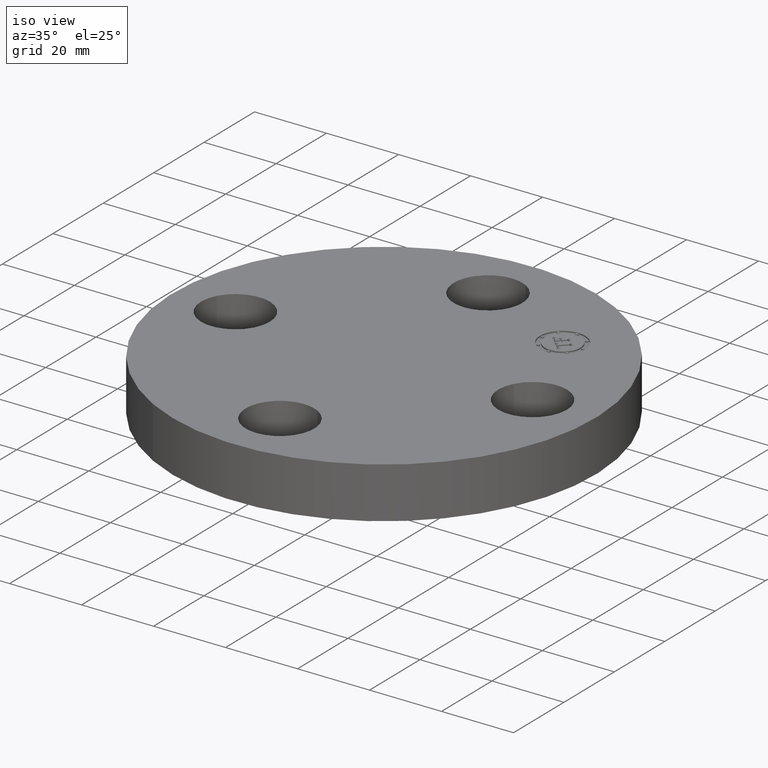
[diagram: clean part render]
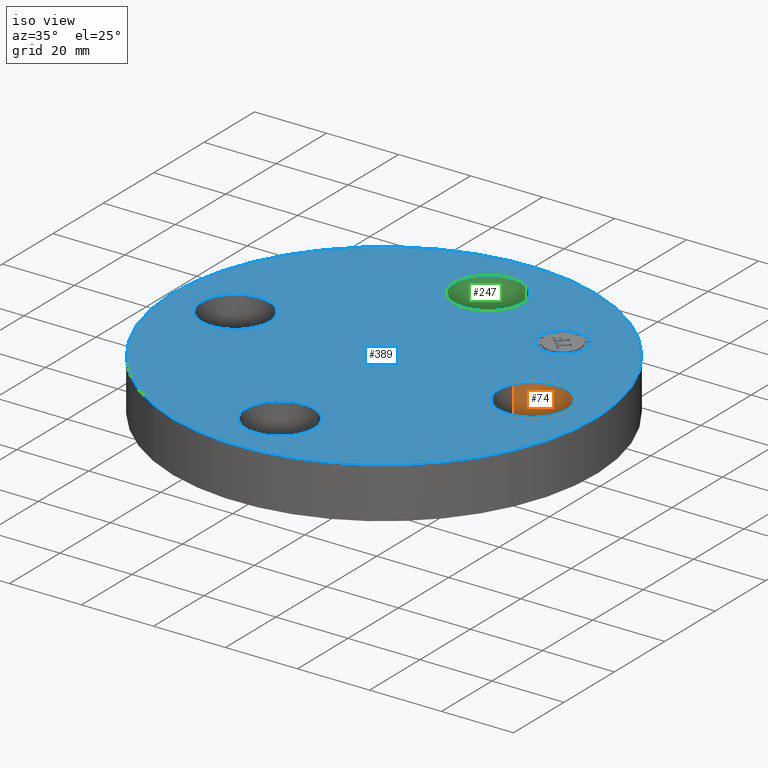
[diagram: same view with three faces highlighted in distinct colors, each labeled with its STEP entity id]
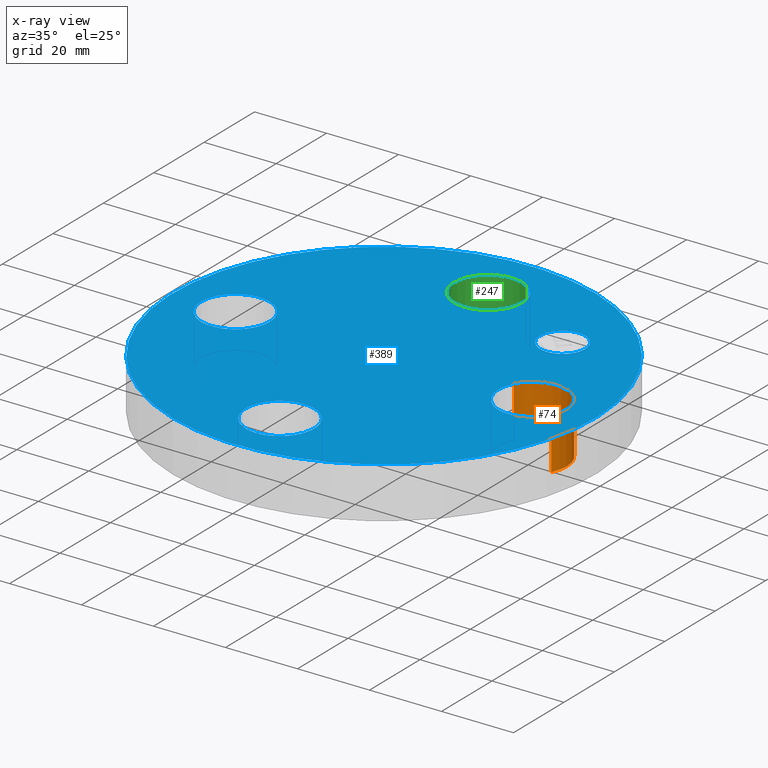
[diagram: x-ray of the same camera — body ghosted, the three highlighted faces saturated]
A machine part, iso view with three faces highlighted in distinct colors.
The next image is the same camera in x-ray (body ghosted, the three faces saturated) — at least one of them is partly hidden behind the body in this view.
Their STEP definitions:

[orange] entity #74 — the highlighted cylindrical surface (partial cylindrical patch) has radius 9.525 mm, axis along (0, -0, -1).
#38=AXIS2_PLACEMENT_3D('Cylinder Axis2P3D',#35,#36,#37) ;
#51=AXIS2_PLACEMENT_3D('Circle Axis2P3D',#49,#50,$) ;
#65=AXIS2_PLACEMENT_3D('Circle Axis2P3D',#63,#64,$) ;
#35=CARTESIAN_POINT('Axis2P3D Location',(1.62500000001,0.,0.556062992128)) ;
#40=CARTESIAN_POINT('Line Origine',(1.2959065393,0.179784576977,0.280000000001)) ;
#44=CARTESIAN_POINT('Vertex',(1.2959065393,0.179784576977,0.)) ;
#46=CARTESIAN_POINT('Vertex',(1.2959065393,0.179784576977,0.560000000002)) ;
#49=CARTESIAN_POINT('Axis2P3D Location',(1.62500000001,0.,0.)) ;
#53=CARTESIAN_POINT('Vertex',(1.95409346072,-0.179784576977,0.)) ;
#56=CARTESIAN_POINT('Line Origine',(1.95409346072,-0.179784576977,0.280000000001)) ;
#60=CARTESIAN_POINT('Vertex',(1.95409346072,-0.179784576977,0.560000000002)) ;
#63=CARTESIAN_POINT('Axis2P3D Location',(1.62500000001,0.,0.560000000002)) ;
#36=DIRECTION('Axis2P3D Direction',(0.,-0.,-0.0393700787402)) ;
#37=DIRECTION('Axis2P3D XDirection',(0.0345504945626,-0.0188750212049,0.)) ;
#41=DIRECTION('Vector Direction',(0.,0.,-0.0393700787402)) ;
#50=DIRECTION('Axis2P3D Direction',(0.,-0.,-0.0393700787402)) ;
#57=DIRECTION('Vector Direction',(0.,0.,-0.0393700787402)) ;
#64=DIRECTION('Axis2P3D Direction',(0.,-0.,-0.0393700787402)) ;
#42=VECTOR('Line Direction',#41,0.0393700787402) ;
#58=VECTOR('Line Direction',#57,0.0393700787402) ;
#69=ORIENTED_EDGE('',*,*,#48,.F.) ;
#70=ORIENTED_EDGE('',*,*,#55,.T.) ;
#71=ORIENTED_EDGE('',*,*,#62,.T.) ;
#72=ORIENTED_EDGE('',*,*,#67,.F.) ;
#74=ADVANCED_FACE('PartBody',(#73),#39,.F.) ;
#52=CIRCLE('generated circle',#51,0.375000000001) ;
#66=CIRCLE('generated circle',#65,0.375000000001) ;
#39=CYLINDRICAL_SURFACE('generated cylinder',#38,0.375000000001) ;
#48=EDGE_CURVE('',#45,#47,#43,.F.) ;
#55=EDGE_CURVE('',#45,#54,#52,.T.) ;
#62=EDGE_CURVE('',#54,#61,#59,.F.) ;
#67=EDGE_CURVE('',#47,#61,#66,.T.) ;
#68=EDGE_LOOP('',(#69,#70,#71,#72)) ;
#73=FACE_OUTER_BOUND('',#68,.T.) ;
#43=LINE('Line',#40,#42) ;
#59=LINE('Line',#56,#58) ;
#45=VERTEX_POINT('',#44) ;
#47=VERTEX_POINT('',#46) ;
#54=VERTEX_POINT('',#53) ;
#61=VERTEX_POINT('',#60) ;

[blue] entity #389 — the highlighted planar face has unit normal (0, 0, -1).
#65=AXIS2_PLACEMENT_3D('Circle Axis2P3D',#63,#64,$) ;
#82=AXIS2_PLACEMENT_3D('Circle Axis2P3D',#80,#81,$) ;
#115=AXIS2_PLACEMENT_3D('Circle Axis2P3D',#113,#114,$) ;
#139=AXIS2_PLACEMENT_3D('Circle Axis2P3D',#137,#138,$) ;
#238=AXIS2_PLACEMENT_3D('Circle Axis2P3D',#236,#237,$) ;
#250=AXIS2_PLACEMENT_3D('Circle Axis2P3D',#248,#249,$) ;
#281=AXIS2_PLACEMENT_3D('Circle Axis2P3D',#279,#280,$) ;
#293=AXIS2_PLACEMENT_3D('Circle Axis2P3D',#291,#292,$) ;
#324=AXIS2_PLACEMENT_3D('Circle Axis2P3D',#322,#323,$) ;
#336=AXIS2_PLACEMENT_3D('Circle Axis2P3D',#334,#335,$) ;
#349=AXIS2_PLACEMENT_3D('Plane Axis2P3D',#346,#347,#348) ;
#373=AXIS2_PLACEMENT_3D('Circle Axis2P3D',#371,#372,$) ;
#382=AXIS2_PLACEMENT_3D('Circle Axis2P3D',#380,#381,$) ;
#46=CARTESIAN_POINT('Vertex',(1.2959065393,0.179784576977,0.560000000002)) ;
#60=CARTESIAN_POINT('Vertex',(1.95409346072,-0.179784576977,0.560000000002)) ;
#63=CARTESIAN_POINT('Axis2P3D Location',(1.62500000001,0.,0.560000000002)) ;
#80=CARTESIAN_POINT('Axis2P3D Location',(1.62500000001,0.,0.560000000002)) ;
#110=CARTESIAN_POINT('Vertex',(1.10747299418,2.02721571797,0.560000000002)) ;
#113=CARTESIAN_POINT('Axis2P3D Location',(0.,0.,0.560000000002)) ;
#117=CARTESIAN_POINT('Vertex',(-1.10747299418,-2.02721571797,0.560000000002)) ;
#137=CARTESIAN_POINT('Axis2P3D Location',(0.,0.,0.560000000002)) ;
#226=CARTESIAN_POINT('Vertex',(-0.179784576977,1.2959065393,0.560000000002)) ;
#233=CARTESIAN_POINT('Vertex',(0.179784576977,1.95409346072,0.560000000002)) ;
#236=CARTESIAN_POINT('Axis2P3D Location',(-2.98507657293E-016,1.62500000001,0.560000000002)) ;
#248=CARTESIAN_POINT('Axis2P3D Location',(-2.98507657293E-016,1.62500000001,0.560000000002)) ;
#269=CARTESIAN_POINT('Vertex',(-1.2959065393,-0.179784576977,0.560000000002)) ;
#276=CARTESIAN_POINT('Vertex',(-1.95409346072,0.179784576977,0.560000000002)) ;
#279=CARTESIAN_POINT('Axis2P3D Location',(-1.62500000001,-1.99005104862E-016,0.560000000002)) ;
#291=CARTESIAN_POINT('Axis2P3D Location',(-1.62500000001,-1.99005104862E-016,0.560000000002)) ;
#312=CARTESIAN_POINT('Vertex',(0.179784576977,-1.2959065393,0.560000000002)) ;
#319=CARTESIAN_POINT('Vertex',(-0.179784576977,-1.95409346072,0.560000000002)) ;
#322=CARTESIAN_POINT('Axis2P3D Location',(-1.8023868212E-016,-1.62500000001,0.560000000002)) ;
#334=CARTESIAN_POINT('Axis2P3D Location',(-1.8023868212E-016,-1.62500000001,0.560000000002)) ;
#346=CARTESIAN_POINT('Axis2P3D Location',(0.,2.31000000001,0.560000000002)) ;
#371=CARTESIAN_POINT('Axis2P3D Location',(1.14904851943,1.14904851943,0.560000000002)) ;
#375=CARTESIAN_POINT('Vertex',(0.974039591088,1.32405744778,0.560000000002)) ;
#377=CARTESIAN_POINT('Vertex',(1.32405744778,0.974039591088,0.560000000002)) ;
#380=CARTESIAN_POINT('Axis2P3D Location',(1.14904851943,1.14904851943,0.560000000002)) ;
#64=DIRECTION('Axis2P3D Direction',(0.,-0.,-0.0393700787402)) ;
#81=DIRECTION('Axis2P3D Direction',(0.,-0.,-0.0393700787402)) ;
#114=DIRECTION('Axis2P3D Direction',(0.,0.,-0.0393700787402)) ;
#138=DIRECTION('Axis2P3D Direction',(0.,0.,-0.0393700787402)) ;
#237=DIRECTION('Axis2P3D Direction',(0.,0.,-0.0393700787402)) ;
#249=DIRECTION('Axis2P3D Direction',(0.,0.,-0.0393700787402)) ;
#280=DIRECTION('Axis2P3D Direction',(-0.,0.,-0.0393700787402)) ;
#292=DIRECTION('Axis2P3D Direction',(-0.,0.,-0.0393700787402)) ;
#323=DIRECTION('Axis2P3D Direction',(0.,-0.,-0.0393700787402)) ;
#335=DIRECTION('Axis2P3D Direction',(0.,-0.,-0.0393700787402)) ;
#347=DIRECTION('Axis2P3D Direction',(0.,0.,-0.0393700787402)) ;
#348=DIRECTION('Axis2P3D XDirection',(0.0393700787402,0.,0.)) ;
#372=DIRECTION('Axis2P3D Direction',(0.,0.,-0.0393700787402)) ;
#381=DIRECTION('Axis2P3D Direction',(0.,0.,-0.0393700787402)) ;
#352=ORIENTED_EDGE('',*,*,#119,.F.) ;
#353=ORIENTED_EDGE('',*,*,#141,.F.) ;
#356=ORIENTED_EDGE('',*,*,#67,.T.) ;
#357=ORIENTED_EDGE('',*,*,#84,.T.) ;
#360=ORIENTED_EDGE('',*,*,#338,.T.) ;
#361=ORIENTED_EDGE('',*,*,#326,.T.) ;
#364=ORIENTED_EDGE('',*,*,#295,.T.) ;
#365=ORIENTED_EDGE('',*,*,#283,.T.) ;
#368=ORIENTED_EDGE('',*,*,#252,.T.) ;
#369=ORIENTED_EDGE('',*,*,#240,.T.) ;
#386=ORIENTED_EDGE('',*,*,#379,.T.) ;
#387=ORIENTED_EDGE('',*,*,#384,.T.) ;
#358=FACE_BOUND('',#355,.T.) ;
#362=FACE_BOUND('',#359,.T.) ;
#366=FACE_BOUND('',#363,.T.) ;
#370=FACE_BOUND('',#367,.T.) ;
#388=FACE_BOUND('',#385,.T.) ;
#389=ADVANCED_FACE('PartBody',(#354,#358,#362,#366,#370,#388),#350,.F.) ;
#66=CIRCLE('generated circle',#65,0.375000000001) ;
#83=CIRCLE('generated circle',#82,0.375000000001) ;
#116=CIRCLE('generated circle',#115,2.31000000001) ;
#140=CIRCLE('generated circle',#139,2.31000000001) ;
#239=CIRCLE('generated circle',#238,0.375000000001) ;
#251=CIRCLE('generated circle',#250,0.375000000001) ;
#282=CIRCLE('generated circle',#281,0.375000000002) ;
#294=CIRCLE('generated circle',#293,0.375000000002) ;
#325=CIRCLE('generated circle',#324,0.375000000001) ;
#337=CIRCLE('generated circle',#336,0.375000000001) ;
#374=CIRCLE('generated circle',#373,0.247500000001) ;
#383=CIRCLE('generated circle',#382,0.247500000001) ;
#67=EDGE_CURVE('',#47,#61,#66,.T.) ;
#84=EDGE_CURVE('',#61,#47,#83,.T.) ;
#119=EDGE_CURVE('',#111,#118,#116,.T.) ;
#141=EDGE_CURVE('',#118,#111,#140,.T.) ;
#240=EDGE_CURVE('',#227,#234,#239,.T.) ;
#252=EDGE_CURVE('',#234,#227,#251,.T.) ;
#283=EDGE_CURVE('',#270,#277,#282,.T.) ;
#295=EDGE_CURVE('',#277,#270,#294,.T.) ;
#326=EDGE_CURVE('',#313,#320,#325,.T.) ;
#338=EDGE_CURVE('',#320,#313,#337,.T.) ;
#379=EDGE_CURVE('',#376,#378,#374,.T.) ;
#384=EDGE_CURVE('',#378,#376,#383,.T.) ;
#351=EDGE_LOOP('',(#352,#353)) ;
#355=EDGE_LOOP('',(#356,#357)) ;
#359=EDGE_LOOP('',(#360,#361)) ;
#363=EDGE_LOOP('',(#364,#365)) ;
#367=EDGE_LOOP('',(#368,#369)) ;
#385=EDGE_LOOP('',(#386,#387)) ;
#354=FACE_OUTER_BOUND('',#351,.T.) ;
#350=PLANE('',#349) ;
#47=VERTEX_POINT('',#46) ;
#61=VERTEX_POINT('',#60) ;
#111=VERTEX_POINT('',#110) ;
#118=VERTEX_POINT('',#117) ;
#227=VERTEX_POINT('',#226) ;
#234=VERTEX_POINT('',#233) ;
#270=VERTEX_POINT('',#269) ;
#277=VERTEX_POINT('',#276) ;
#313=VERTEX_POINT('',#312) ;
#320=VERTEX_POINT('',#319) ;
#376=VERTEX_POINT('',#375) ;
#378=VERTEX_POINT('',#377) ;

[green] entity #247 — the highlighted cylindrical surface (partial cylindrical patch) has radius 9.525 mm, axis along (0, 0, -1).
#200=AXIS2_PLACEMENT_3D('Circle Axis2P3D',#198,#199,$) ;
#220=AXIS2_PLACEMENT_3D('Cylinder Axis2P3D',#217,#218,#219) ;
#238=AXIS2_PLACEMENT_3D('Circle Axis2P3D',#236,#237,$) ;
#198=CARTESIAN_POINT('Axis2P3D Location',(-3.1470888887E-016,1.62500000001,0.)) ;
#202=CARTESIAN_POINT('Vertex',(-0.179784576977,1.2959065393,0.)) ;
#204=CARTESIAN_POINT('Vertex',(0.179784576977,1.95409346072,0.)) ;
#217=CARTESIAN_POINT('Axis2P3D Location',(-2.98507657293E-016,1.62500000001,0.556062992128)) ;
#222=CARTESIAN_POINT('Line Origine',(-0.179784576977,1.2959065393,0.280000000001)) ;
#226=CARTESIAN_POINT('Vertex',(-0.179784576977,1.2959065393,0.560000000002)) ;
#229=CARTESIAN_POINT('Line Origine',(0.179784576977,1.95409346072,0.280000000001)) ;
#233=CARTESIAN_POINT('Vertex',(0.179784576977,1.95409346072,0.560000000002)) ;
#236=CARTESIAN_POINT('Axis2P3D Location',(-2.98507657293E-016,1.62500000001,0.560000000002)) ;
#199=DIRECTION('Axis2P3D Direction',(0.,0.,-0.0393700787402)) ;
#218=DIRECTION('Axis2P3D Direction',(0.,0.,-0.0393700787402)) ;
#219=DIRECTION('Axis2P3D XDirection',(0.0188750212049,0.0345504945626,0.)) ;
#223=DIRECTION('Vector Direction',(0.,0.,-0.0393700787402)) ;
#230=DIRECTION('Vector Direction',(0.,0.,-0.0393700787402)) ;
#237=DIRECTION('Axis2P3D Direction',(0.,0.,-0.0393700787402)) ;
#224=VECTOR('Line Direction',#223,0.0393700787402) ;
#231=VECTOR('Line Direction',#230,0.0393700787402) ;
#242=ORIENTED_EDGE('',*,*,#228,.F.) ;
#243=ORIENTED_EDGE('',*,*,#206,.T.) ;
#244=ORIENTED_EDGE('',*,*,#235,.T.) ;
#245=ORIENTED_EDGE('',*,*,#240,.F.) ;
#247=ADVANCED_FACE('PartBody',(#246),#221,.F.) ;
#201=CIRCLE('generated circle',#200,0.375000000001) ;
#239=CIRCLE('generated circle',#238,0.375000000001) ;
#221=CYLINDRICAL_SURFACE('generated cylinder',#220,0.375000000001) ;
#206=EDGE_CURVE('',#203,#205,#201,.T.) ;
#228=EDGE_CURVE('',#203,#227,#225,.F.) ;
#235=EDGE_CURVE('',#205,#234,#232,.F.) ;
#240=EDGE_CURVE('',#227,#234,#239,.T.) ;
#241=EDGE_LOOP('',(#242,#243,#244,#245)) ;
#246=FACE_OUTER_BOUND('',#241,.T.) ;
#225=LINE('Line',#222,#224) ;
#232=LINE('Line',#229,#231) ;
#203=VERTEX_POINT('',#202) ;
#205=VERTEX_POINT('',#204) ;
#227=VERTEX_POINT('',#226) ;
#234=VERTEX_POINT('',#233) ;